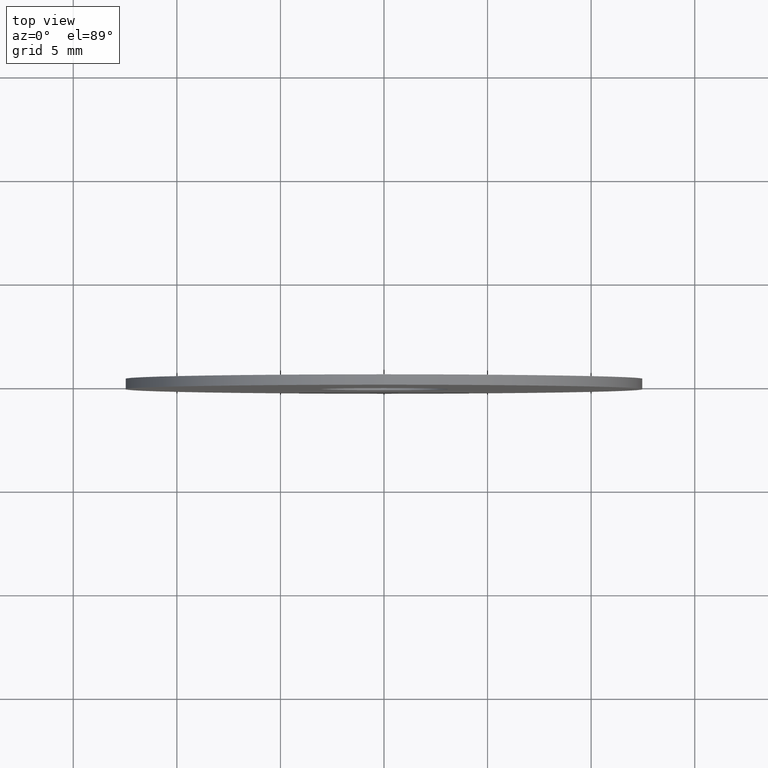
[diagram: clean part render]
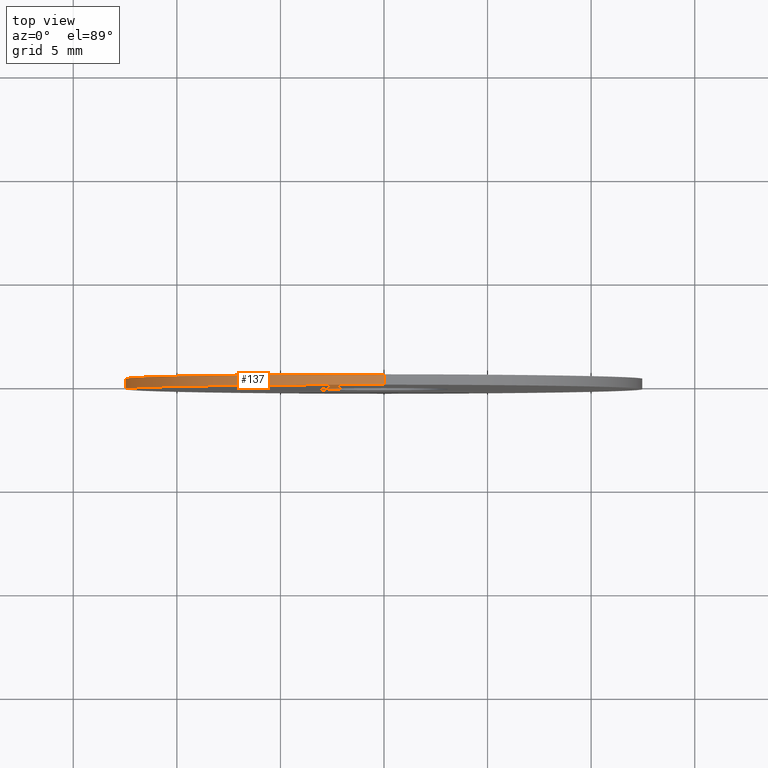
[diagram: same view with one face highlighted and labeled with its STEP entity id]
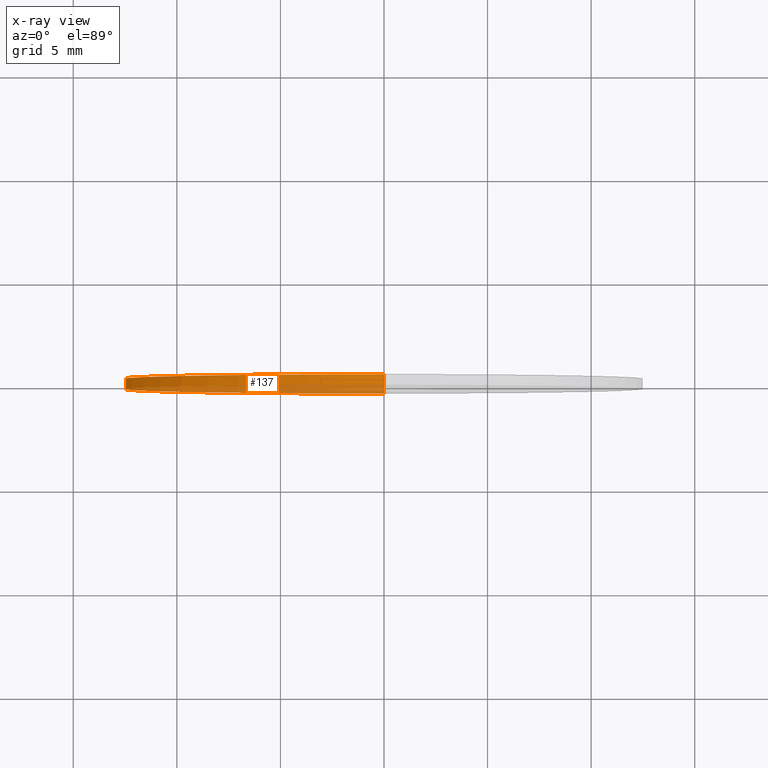
[diagram: x-ray of the same camera — body ghosted, the highlighted face saturated]
A machine part, top view. The second image highlights one B-rep face of the part: STEP entity #137.
The next image is the same camera in x-ray: the body ghosted, the highlighted face saturated — about 34% of this face is hidden behind the body in this view.
In plain terms, the highlighted cylindrical surface (partial cylindrical patch) has radius 12.5 mm, axis along (-0, -1, -0).
Its self-contained STEP definition (entity closure, byte-faithful):
#10 = AXIS2_PLACEMENT_3D ( 'NONE', #69, #51, #187 ) ;
#13 = EDGE_CURVE ( 'NONE', #29, #85, #145, .T. ) ;
#14 = CARTESIAN_POINT ( 'NONE',  ( 1.530808498934191521E-15, 0.2500000000000000000, 12.50000000000000000 ) ) ;
#22 = LINE ( 'NONE', #178, #119 ) ;
#23 = EDGE_CURVE ( 'NONE', #211, #212, #34, .T. ) ;
#29 = VERTEX_POINT ( 'NONE', #171 ) ;
#33 = CARTESIAN_POINT ( 'NONE',  ( 0.000000000000000000, -0.2500000000000000000, 0.000000000000000000 ) ) ;
#34 = CIRCLE ( 'NONE', #157, 12.50000000000000000 ) ;
#45 = ORIENTED_EDGE ( 'NONE', *, *, #186, .F. ) ;
#48 = DIRECTION ( 'NONE',  ( -0.000000000000000000, -1.000000000000000000, -0.000000000000000000 ) ) ;
#49 = DIRECTION ( 'NONE',  ( -0.000000000000000000, -1.000000000000000000, -0.000000000000000000 ) ) ;
#51 = DIRECTION ( 'NONE',  ( 0.000000000000000000, 1.000000000000000000, 0.000000000000000000 ) ) ;
#56 = DIRECTION ( 'NONE',  ( 0.000000000000000000, 0.000000000000000000, -1.000000000000000000 ) ) ;
#69 = CARTESIAN_POINT ( 'NONE',  ( 0.000000000000000000, 0.2500000000000000000, 0.000000000000000000 ) ) ;
#82 = ORIENTED_EDGE ( 'NONE', *, *, #110, .T. ) ;
#85 = VERTEX_POINT ( 'NONE', #14 ) ;
#88 = VECTOR ( 'NONE', #48, 1000.000000000000000 ) ;
#90 = FACE_OUTER_BOUND ( 'NONE', #108, .T. ) ;
#108 = EDGE_LOOP ( 'NONE', ( #45, #209, #82, #128 ) ) ;
#110 = EDGE_CURVE ( 'NONE', #29, #211, #130, .T. ) ;
#119 = VECTOR ( 'NONE', #236, 1000.000000000000000 ) ;
#128 = ORIENTED_EDGE ( 'NONE', *, *, #23, .T. ) ;
#130 = LINE ( 'NONE', #170, #88 ) ;
#135 = CARTESIAN_POINT ( 'NONE',  ( 0.000000000000000000, -0.2500000000000000000, -12.50000000000000000 ) ) ;
#137 = ADVANCED_FACE ( 'NONE', ( #90 ), #189, .T. ) ;
#145 = CIRCLE ( 'NONE', #10, 12.50000000000000000 ) ;
#146 = DIRECTION ( 'NONE',  ( 0.000000000000000000, 0.000000000000000000, 1.000000000000000000 ) ) ;
#157 = AXIS2_PLACEMENT_3D ( 'NONE', #33, #247, #146 ) ;
#170 = CARTESIAN_POINT ( 'NONE',  ( 0.000000000000000000, 0.2500000000000000000, -12.50000000000000000 ) ) ;
#171 = CARTESIAN_POINT ( 'NONE',  ( 0.000000000000000000, 0.2500000000000000000, -12.50000000000000000 ) ) ;
#175 = CARTESIAN_POINT ( 'NONE',  ( 1.530808498934191521E-15, -0.2500000000000000000, 12.50000000000000000 ) ) ;
#177 = AXIS2_PLACEMENT_3D ( 'NONE', #228, #49, #56 ) ;
#178 = CARTESIAN_POINT ( 'NONE',  ( 1.530808498934191521E-15, 0.2500000000000000000, 12.50000000000000000 ) ) ;
#186 = EDGE_CURVE ( 'NONE', #85, #212, #22, .T. ) ;
#187 = DIRECTION ( 'NONE',  ( 0.000000000000000000, 0.000000000000000000, 1.000000000000000000 ) ) ;
#189 = CYLINDRICAL_SURFACE ( 'NONE', #177, 12.50000000000000000 ) ;
#209 = ORIENTED_EDGE ( 'NONE', *, *, #13, .F. ) ;
#211 = VERTEX_POINT ( 'NONE', #135 ) ;
#212 = VERTEX_POINT ( 'NONE', #175 ) ;
#228 = CARTESIAN_POINT ( 'NONE',  ( 0.000000000000000000, 0.2500000000000000000, 0.000000000000000000 ) ) ;
#236 = DIRECTION ( 'NONE',  ( -0.000000000000000000, -1.000000000000000000, -0.000000000000000000 ) ) ;
#247 = DIRECTION ( 'NONE',  ( 0.000000000000000000, 1.000000000000000000, 0.000000000000000000 ) ) ;